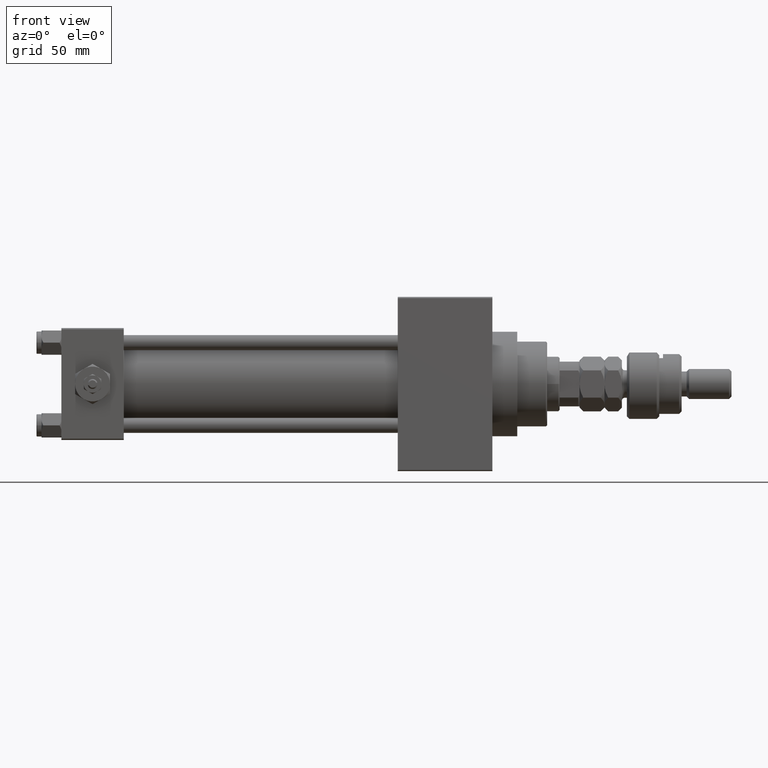
[diagram: clean part render]
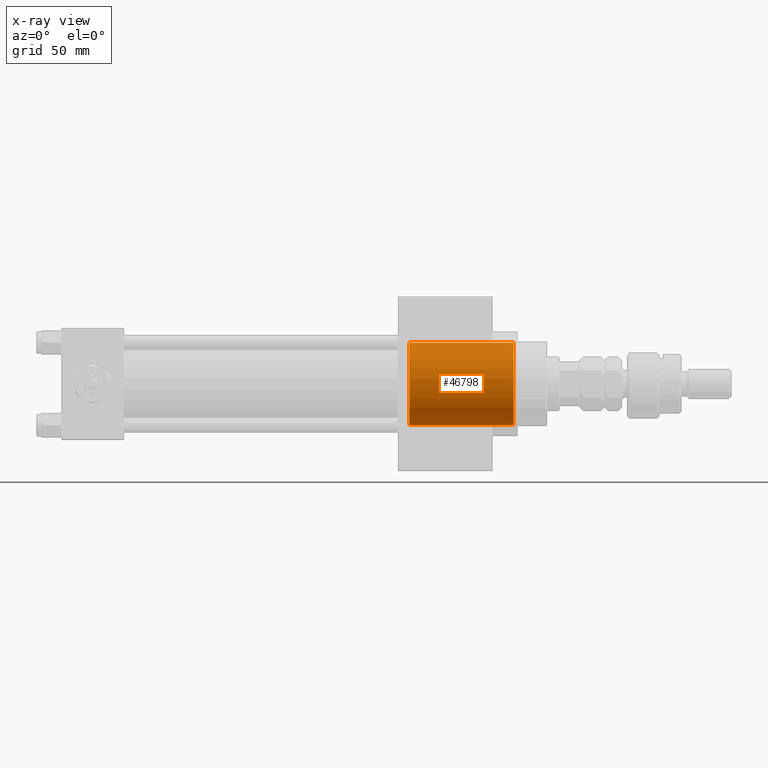
[diagram: x-ray — body ghosted, one internal face saturated and labeled with its STEP entity id]
A machine part, front view, then the same camera in x-ray: the body is ghosted and one INTERNAL B-rep face — a face not visible from any outside direction — is saturated and labeled: STEP entity #46798.
In plain terms, the highlighted cylindrical surface (partial cylindrical patch) has radius 16.5 mm, axis along (1, 0, 0).
Its self-contained STEP definition (entity closure, byte-faithful):
#136 = CARTESIAN_POINT ( 'NONE',  ( 181.4999999999999432, 0.000000000000000000, -16.50000000000000000 ) ) ;
#204 = EDGE_CURVE ( 'NONE', #8466, #15969, #43482, .T. ) ;
#3831 = VECTOR ( 'NONE', #32388, 1000.000000000000000 ) ;
#3857 = DIRECTION ( 'NONE',  ( 1.000000000000000000, -0.000000000000000000, -0.000000000000000000 ) ) ;
#5268 = EDGE_CURVE ( 'NONE', #15969, #15388, #43865, .T. ) ;
#7459 = ORIENTED_EDGE ( 'NONE', *, *, #48980, .T. ) ;
#8231 = CARTESIAN_POINT ( 'NONE',  ( 139.7400000000000375, 0.000000000000000000, -16.50000000000000000 ) ) ;
#8466 = VERTEX_POINT ( 'NONE', #25938 ) ;
#9171 = EDGE_CURVE ( 'NONE', #15897, #15388, #40378, .T. ) ;
#10569 = EDGE_LOOP ( 'NONE', ( #18394, #7459, #41839, #30444 ) ) ;
#14734 = LINE ( 'NONE', #26414, #22337 ) ;
#15388 = VERTEX_POINT ( 'NONE', #136 ) ;
#15897 = VERTEX_POINT ( 'NONE', #35555 ) ;
#15969 = VERTEX_POINT ( 'NONE', #25345 ) ;
#18394 = ORIENTED_EDGE ( 'NONE', *, *, #204, .F. ) ;
#19701 = DIRECTION ( 'NONE',  ( 0.000000000000000000, 0.000000000000000000, -1.000000000000000000 ) ) ;
#20225 = AXIS2_PLACEMENT_3D ( 'NONE', #49293, #32880, #25579 ) ;
#22337 = VECTOR ( 'NONE', #38647, 1000.000000000000000 ) ;
#23859 = FACE_OUTER_BOUND ( 'NONE', #10569, .T. ) ;
#25134 = DIRECTION ( 'NONE',  ( 1.000000000000000000, 0.000000000000000000, 0.000000000000000000 ) ) ;
#25345 = CARTESIAN_POINT ( 'NONE',  ( 139.7400000000000375, 0.000000000000000000, -16.50000000000000000 ) ) ;
#25579 = DIRECTION ( 'NONE',  ( 0.000000000000000000, 0.000000000000000000, -1.000000000000000000 ) ) ;
#25911 = DIRECTION ( 'NONE',  ( 0.000000000000000000, 0.000000000000000000, -1.000000000000000000 ) ) ;
#25938 = CARTESIAN_POINT ( 'NONE',  ( 139.7400000000000375, 2.020667218593133100E-15, 16.50000000000000000 ) ) ;
#26414 = CARTESIAN_POINT ( 'NONE',  ( 139.7400000000000375, 2.020667218593133100E-15, 16.50000000000000000 ) ) ;
#30444 = ORIENTED_EDGE ( 'NONE', *, *, #5268, .F. ) ;
#32388 = DIRECTION ( 'NONE',  ( 1.000000000000000000, -0.000000000000000000, -0.000000000000000000 ) ) ;
#32880 = DIRECTION ( 'NONE',  ( 1.000000000000000000, 0.000000000000000000, 0.000000000000000000 ) ) ;
#35555 = CARTESIAN_POINT ( 'NONE',  ( 181.4999999999999432, 2.020667218593133100E-15, 16.50000000000000000 ) ) ;
#38647 = DIRECTION ( 'NONE',  ( 1.000000000000000000, -0.000000000000000000, -0.000000000000000000 ) ) ;
#39471 = CARTESIAN_POINT ( 'NONE',  ( 139.7400000000000375, 0.000000000000000000, 0.000000000000000000 ) ) ;
#40378 = CIRCLE ( 'NONE', #45343, 16.50000000000000000 ) ;
#41329 = AXIS2_PLACEMENT_3D ( 'NONE', #39471, #3857, #19701 ) ;
#41839 = ORIENTED_EDGE ( 'NONE', *, *, #9171, .T. ) ;
#43384 = CYLINDRICAL_SURFACE ( 'NONE', #41329, 16.50000000000000000 ) ;
#43482 = CIRCLE ( 'NONE', #20225, 16.50000000000000000 ) ;
#43865 = LINE ( 'NONE', #8231, #3831 ) ;
#45343 = AXIS2_PLACEMENT_3D ( 'NONE', #48853, #25134, #25911 ) ;
#46798 = ADVANCED_FACE ( 'NONE', ( #23859 ), #43384, .F. ) ;
#48853 = CARTESIAN_POINT ( 'NONE',  ( 181.4999999999999432, 0.000000000000000000, 0.000000000000000000 ) ) ;
#48980 = EDGE_CURVE ( 'NONE', #8466, #15897, #14734, .T. ) ;
#49293 = CARTESIAN_POINT ( 'NONE',  ( 139.7400000000000375, 0.000000000000000000, 0.000000000000000000 ) ) ;